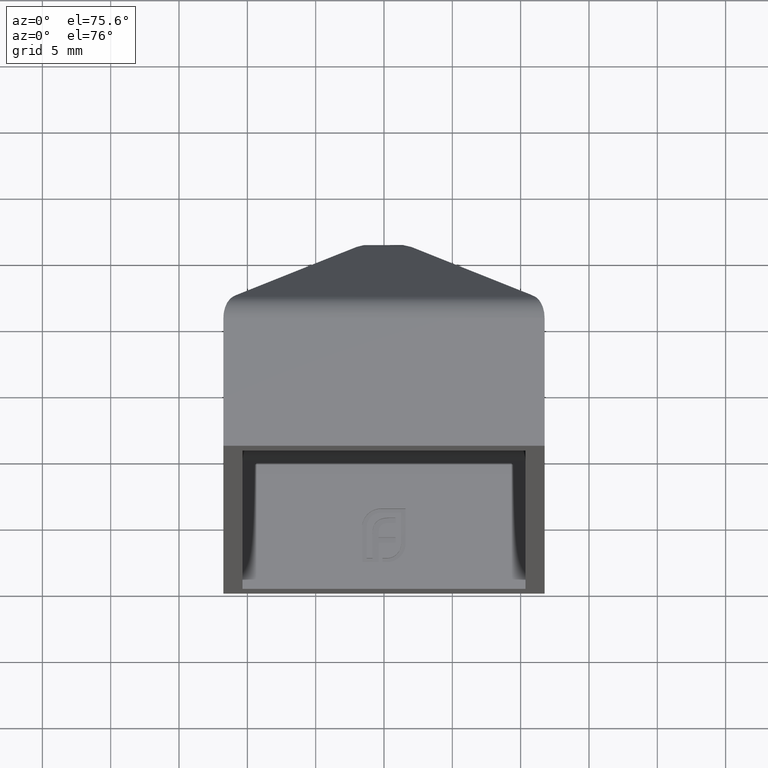
[diagram: clean part render]
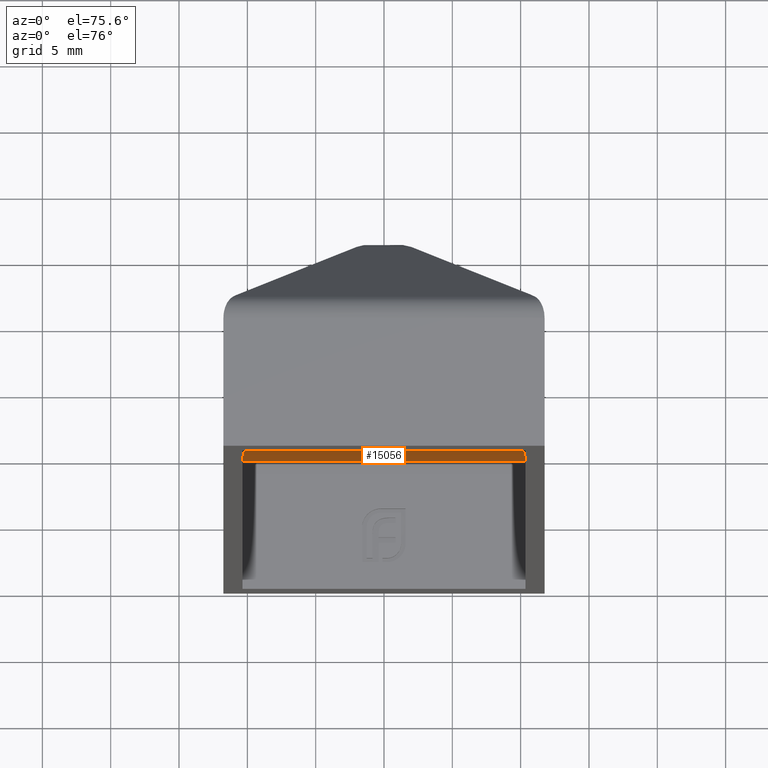
[diagram: same view with one face highlighted and labeled with its STEP entity id]
A machine part, auxiliary view. The second image highlights one B-rep face of the part: STEP entity #15056.
In plain terms, the highlighted cylindrical surface (edge-blend (fillet) strip) has radius 0.7216 mm, axis along (1, 0, -0).
Its self-contained STEP definition (entity closure, byte-faithful):
#185 = CARTESIAN_POINT ( 'NONE',  ( -10.21132024935433336, 10.31150734630003818, -19.93844125393290767 ) ) ;
#245 = DIRECTION ( 'NONE',  ( -1.000000000000000000, -1.369541201499284725E-15, 0.000000000000000000 ) ) ;
#444 = LINE ( 'NONE', #13176, #8097 ) ;
#658 = VERTEX_POINT ( 'NONE', #11920 ) ;
#1081 = LINE ( 'NONE', #6702, #10199 ) ;
#1090 = CARTESIAN_POINT ( 'NONE',  ( -10.23716439943572887, 10.25354489439231820, -20.06027079060804041 ) ) ;
#1146 = CARTESIAN_POINT ( 'NONE',  ( -10.21132024935433336, 10.31150734630003818, -19.93844125393290767 ) ) ;
#1262 = CARTESIAN_POINT ( 'NONE',  ( -10.33081724765502152, 9.933616950658862521, -20.30971094291938783 ) ) ;
#2281 = ORIENTED_EDGE ( 'NONE', *, *, #6402, .T. ) ;
#2557 = ORIENTED_EDGE ( 'NONE', *, *, #11515, .T. ) ;
#2598 = DIRECTION ( 'NONE',  ( 0.000000000000000000, 1.000000000000000000, 0.000000000000000000 ) ) ;
#2952 = CYLINDRICAL_SURFACE ( 'NONE', #6644, 0.7215540138156735228 ) ;
#3620 = CARTESIAN_POINT ( 'NONE',  ( -10.34999999999999254, 9.796750358620231580, -20.34999999999999076 ) ) ;
#3774 = FACE_OUTER_BOUND ( 'NONE', #14948, .T. ) ;
#5929 = CARTESIAN_POINT ( 'NONE',  ( 10.34999999999999254, 9.797242758714274302, -20.34999999999998721 ) ) ;
#6060 = B_SPLINE_CURVE_WITH_KNOTS ( 'NONE', 3,
 ( #14815, #5929, #12328, #9792, #7285, #6085 ),
 .UNSPECIFIED., .F., .F.,
 ( 4, 2, 4 ),
 ( 0.004228594369422901574, 0.004639336221600757690, 0.005050078073778613806 ),
 .UNSPECIFIED. ) ;
#6085 = CARTESIAN_POINT ( 'NONE',  ( 10.21132024935432803, 10.31150734630006660, -19.93844125393290767 ) ) ;
#6402 = EDGE_CURVE ( 'NONE', #12198, #658, #6060, .T. ) ;
#6644 = AXIS2_PLACEMENT_3D ( 'NONE', #12578, #12803, #2598 ) ;
#6702 = CARTESIAN_POINT ( 'NONE',  ( -31.75000000000000000, 10.31150734630000798, -19.93844125393290767 ) ) ;
#7049 = EDGE_CURVE ( 'NONE', #9392, #658, #1081, .T. ) ;
#7285 = CARTESIAN_POINT ( 'NONE',  ( 10.23732129206518238, 10.25319302050796821, -20.06101038375724599 ) ) ;
#8097 = VECTOR ( 'NONE', #245, 1000.000000000000000 ) ;
#8825 = CARTESIAN_POINT ( 'NONE',  ( -10.27367175181090353, 10.16224024991563724, -20.16390315352649765 ) ) ;
#8972 = ORIENTED_EDGE ( 'NONE', *, *, #9391, .F. ) ;
#9391 = EDGE_CURVE ( 'NONE', #12198, #15062, #444, .T. ) ;
#9392 = VERTEX_POINT ( 'NONE', #185 ) ;
#9792 = CARTESIAN_POINT ( 'NONE',  ( 10.27363927644664265, 10.16206488354039728, -20.16375686680979129 ) ) ;
#10199 = VECTOR ( 'NONE', #11965, 1000.000000000000000 ) ;
#11515 = EDGE_CURVE ( 'NONE', #9392, #15062, #15729, .T. ) ;
#11579 = ORIENTED_EDGE ( 'NONE', *, *, #7049, .F. ) ;
#11920 = CARTESIAN_POINT ( 'NONE',  ( 10.21132024935432803, 10.31150734630006660, -19.93844125393290767 ) ) ;
#11965 = DIRECTION ( 'NONE',  ( 1.000000000000000000, 1.369541201499284725E-15, -0.000000000000000000 ) ) ;
#12198 = VERTEX_POINT ( 'NONE', #14090 ) ;
#12328 = CARTESIAN_POINT ( 'NONE',  ( 10.33035877652785750, 9.935753823524246187, -20.30860402424150379 ) ) ;
#12578 = CARTESIAN_POINT ( 'NONE',  ( -31.75000000000000000, 9.659937604194842820, -19.62844598618432457 ) ) ;
#12803 = DIRECTION ( 'NONE',  ( 1.000000000000000000, 1.369541201499284725E-15, -0.000000000000000000 ) ) ;
#13176 = CARTESIAN_POINT ( 'NONE',  ( -31.75000000000000000, 9.659937604194842820, -20.34999999999999787 ) ) ;
#14090 = CARTESIAN_POINT ( 'NONE',  ( 10.34999999999999076, 9.659937604194951177, -20.35000000000000142 ) ) ;
#14815 = CARTESIAN_POINT ( 'NONE',  ( 10.34999999999999076, 9.659937604194951177, -20.35000000000000142 ) ) ;
#14948 = EDGE_LOOP ( 'NONE', ( #8972, #2281, #11579, #2557 ) ) ;
#15056 = ADVANCED_FACE ( 'NONE', ( #3774 ), #2952, .F. ) ;
#15062 = VERTEX_POINT ( 'NONE', #15333 ) ;
#15328 = CARTESIAN_POINT ( 'NONE',  ( -10.34999999999998721, 9.659937604194889005, -20.35000000000000142 ) ) ;
#15333 = CARTESIAN_POINT ( 'NONE',  ( -10.34999999999998721, 9.659937604194889005, -20.35000000000000142 ) ) ;
#15729 = B_SPLINE_CURVE_WITH_KNOTS ( 'NONE', 3,
 ( #1146, #1090, #8825, #1262, #3620, #15328 ),
 .UNSPECIFIED., .F., .F.,
 ( 4, 2, 4 ),
 ( 0.004095039511602118279, 0.004505866985808955165, 0.004916694460015792051 ),
 .UNSPECIFIED. ) ;